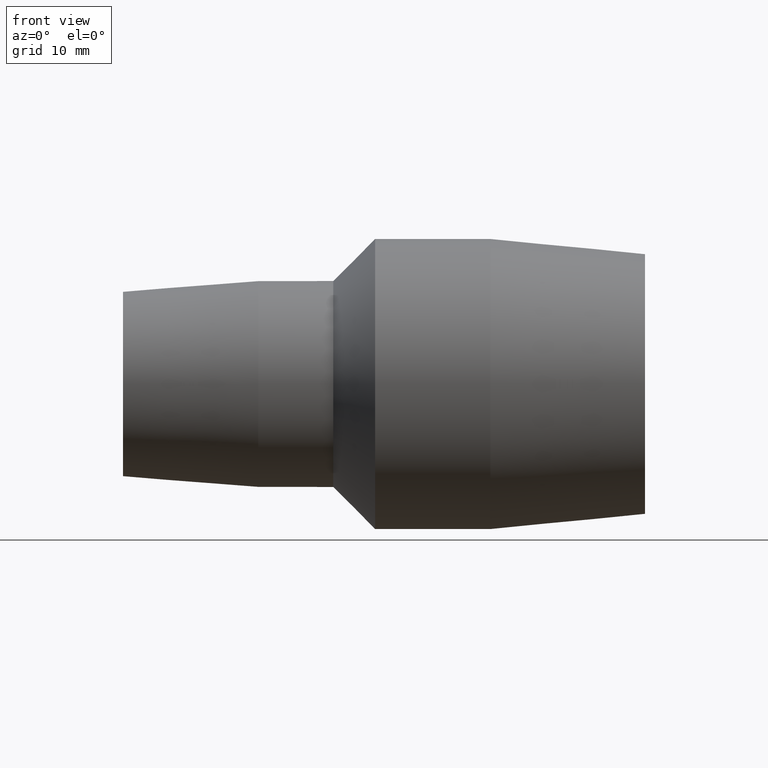
[diagram: clean part render]
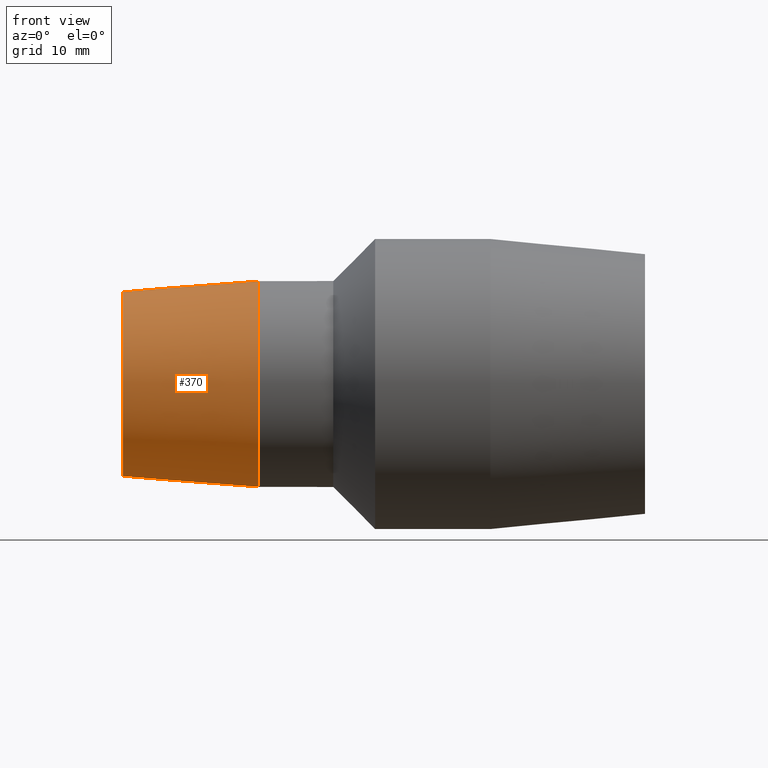
[diagram: same view with one face highlighted and labeled with its STEP entity id]
A machine part, front view. The second image highlights one B-rep face of the part: STEP entity #370.
In plain terms, the highlighted conical surface has half-angle 4.357 deg.
Its self-contained STEP definition (entity closure, byte-faithful):
#16=B_SPLINE_CURVE_WITH_KNOTS('',3,(#631,#632,#633,#634,#635,#636,#637,
#638,#639,#640),.UNSPECIFIED.,.F.,.F.,(4,2,2,2,4),(-1.22343570303803,-0.843723200450169,
-0.421861600225085,-0.210930800112543,0.),.UNSPECIFIED.);
#18=B_SPLINE_CURVE_WITH_KNOTS('',3,(#652,#653,#654,#655,#656,#657,#658,
#659,#660,#661,#662,#663,#664,#665,#666,#667,#668,#669,#670,#671,#672,#673,
#674,#675,#676,#677,#678,#679,#680,#681),.UNSPECIFIED.,.F.,.F.,(4,2,2,2,
2,2,2,2,2,2,2,2,2,2,4),(0.,0.188159917955633,0.376319835911266,0.752639671822533,
1.12794190605186,1.50324414028119,1.87854637451053,2.25384860873986,2.63016844465112,
2.81832836260676,3.00648828056239,3.21741908067493,3.42834988078747,3.85021148101256,
4.22992398364678),.UNSPECIFIED.);
#27=CONICAL_SURFACE('',#434,15.2,4.35697500584628);
#57=FACE_BOUND('',#162,.T.);
#100=FACE_OUTER_BOUND('',#161,.T.);
#161=EDGE_LOOP('',(#323,#324,#325));
#162=EDGE_LOOP('',(#326));
#175=CIRCLE('',#399,16.);
#192=CIRCLE('',#433,14.4);
#204=VERTEX_POINT('',#629);
#205=VERTEX_POINT('',#630);
#206=VERTEX_POINT('',#641);
#224=VERTEX_POINT('',#737);
#236=EDGE_CURVE('',#204,#205,#16,.T.);
#238=EDGE_CURVE('',#205,#206,#18,.T.);
#241=EDGE_CURVE('',#204,#206,#175,.T.);
#258=EDGE_CURVE('',#224,#224,#192,.T.);
#323=ORIENTED_EDGE('',*,*,#238,.T.);
#324=ORIENTED_EDGE('',*,*,#241,.F.);
#325=ORIENTED_EDGE('',*,*,#236,.T.);
#326=ORIENTED_EDGE('',*,*,#258,.T.);
#370=ADVANCED_FACE('',(#100,#57),#27,.T.);
#399=AXIS2_PLACEMENT_3D('',#687,#489,#490);
#433=AXIS2_PLACEMENT_3D('',#738,#557,#558);
#434=AXIS2_PLACEMENT_3D('',#739,#559,#560);
#489=DIRECTION('center_axis',(1.,1.83697019872103E-16,0.));
#490=DIRECTION('ref_axis',(0.,0.,-1.));
#557=DIRECTION('center_axis',(1.,1.83697019872103E-16,0.));
#558=DIRECTION('ref_axis',(0.,0.,-1.));
#559=DIRECTION('center_axis',(1.,1.83697019872103E-16,0.));
#560=DIRECTION('ref_axis',(-1.47098614156963E-16,1.,0.));
#629=CARTESIAN_POINT('',(-19.4999999999998,15.4591780700979,4.12478040591305));
#630=CARTESIAN_POINT('',(-28.9269667620914,11.4026718073472,10.1740409320028));
#631=CARTESIAN_POINT('Ctrl Pts',(-19.4999999999998,15.4591780700979,4.12478040591306));
#632=CARTESIAN_POINT('Ctrl Pts',(-20.0098529835228,15.1034823463556,5.3072017681473));
#633=CARTESIAN_POINT('Ctrl Pts',(-20.7372740026943,14.6098545976842,6.36294378411461));
#634=CARTESIAN_POINT('Ctrl Pts',(-22.4465365443782,13.5625099447371,8.12946959308703));
#635=CARTESIAN_POINT('Ctrl Pts',(-23.5799225428481,12.9207845195791,8.93015372018443));
#636=CARTESIAN_POINT('Ctrl Pts',(-25.4818672219328,12.1338903005604,9.72256680463307));
#637=CARTESIAN_POINT('Ctrl Pts',(-26.1500286169018,11.9022536521228,9.9207730130948));
#638=CARTESIAN_POINT('Ctrl Pts',(-27.5218954025901,11.5560608236013,10.1643956127504));
#639=CARTESIAN_POINT('Ctrl Pts',(-28.2258960044139,11.4425280115162,10.2096026546815));
#640=CARTESIAN_POINT('Ctrl Pts',(-28.9269667620915,11.4026718073472,10.1740409320028));
#641=CARTESIAN_POINT('',(-19.4999999999999,15.4591780700979,-4.12478040591319));
#652=CARTESIAN_POINT('Ctrl Pts',(-28.9269667620915,11.4026718073472,10.1740409320028));
#653=CARTESIAN_POINT('Ctrl Pts',(-29.5523539325537,11.3671182509085,10.1423182494072));
#654=CARTESIAN_POINT('Ctrl Pts',(-30.1858643799534,11.3898936684929,10.0454002782201));
#655=CARTESIAN_POINT('Ctrl Pts',(-31.4234286964334,11.5447793256419,9.72126231207074));
#656=CARTESIAN_POINT('Ctrl Pts',(-32.0276192623952,11.6761527669948,9.49421261294803));
#657=CARTESIAN_POINT('Ctrl Pts',(-33.7415972050276,12.1702261085194,8.64643979542795));
#658=CARTESIAN_POINT('Ctrl Pts',(-34.7545334798056,12.6281368860016,7.85026384258532));
#659=CARTESIAN_POINT('Ctrl Pts',(-36.342584169182,13.4333826326405,6.08766972242978));
#660=CARTESIAN_POINT('Ctrl Pts',(-37.0371539985382,13.8448667400185,4.98894143604009));
#661=CARTESIAN_POINT('Ctrl Pts',(-37.9703068510572,14.41793872117,2.57154623052441));
#662=CARTESIAN_POINT('Ctrl Pts',(-38.2069934541885,14.5747052606333,1.2510074474311));
#663=CARTESIAN_POINT('Ctrl Pts',(-38.2069934541885,14.5747052606333,-1.2510074474311));
#664=CARTESIAN_POINT('Ctrl Pts',(-37.9703068510572,14.41793872117,-2.5715462305244));
#665=CARTESIAN_POINT('Ctrl Pts',(-37.0371539985382,13.8448667400185,-4.98894143604009));
#666=CARTESIAN_POINT('Ctrl Pts',(-36.342584169182,13.4333826326405,-6.08766972242978));
#667=CARTESIAN_POINT('Ctrl Pts',(-34.7545334798056,12.6281368860016,-7.85026384258532));
#668=CARTESIAN_POINT('Ctrl Pts',(-33.7415972050276,12.1702261085194,-8.64643979542795));
#669=CARTESIAN_POINT('Ctrl Pts',(-32.0276192623952,11.6761527669948,-9.49421261294803));
#670=CARTESIAN_POINT('Ctrl Pts',(-31.4234286964334,11.5447793256419,-9.72126231207073));
#671=CARTESIAN_POINT('Ctrl Pts',(-30.1858643799534,11.3898936684929,-10.0454002782201));
#672=CARTESIAN_POINT('Ctrl Pts',(-29.5523539325537,11.3671182509085,-10.1423182494072));
#673=CARTESIAN_POINT('Ctrl Pts',(-28.2258960044139,11.4425280115162,-10.2096026546815));
#674=CARTESIAN_POINT('Ctrl Pts',(-27.5218954025901,11.5560608236013,-10.1643956127504));
#675=CARTESIAN_POINT('Ctrl Pts',(-26.1500286169018,11.9022536521228,-9.92077301309481));
#676=CARTESIAN_POINT('Ctrl Pts',(-25.4818672219328,12.1338903005604,-9.72256680463306));
#677=CARTESIAN_POINT('Ctrl Pts',(-23.5799225428481,12.9207845195791,-8.93015372018442));
#678=CARTESIAN_POINT('Ctrl Pts',(-22.4465365443782,13.5625099447371,-8.12946959308703));
#679=CARTESIAN_POINT('Ctrl Pts',(-20.7372740025955,14.6098545977448,-6.36294378401244));
#680=CARTESIAN_POINT('Ctrl Pts',(-20.0098529847717,15.1034823454843,-5.30720177104357));
#681=CARTESIAN_POINT('Ctrl Pts',(-19.4999999999999,15.4591780700979,-4.12478040591319));
#687=CARTESIAN_POINT('Origin',(-19.5,3.85763741731416E-15,0.));
#737=CARTESIAN_POINT('',(-40.5,14.4,0.));
#738=CARTESIAN_POINT('Origin',(-40.5,0.,0.));
#739=CARTESIAN_POINT('Origin',(-30.,1.92881870865708E-15,0.));